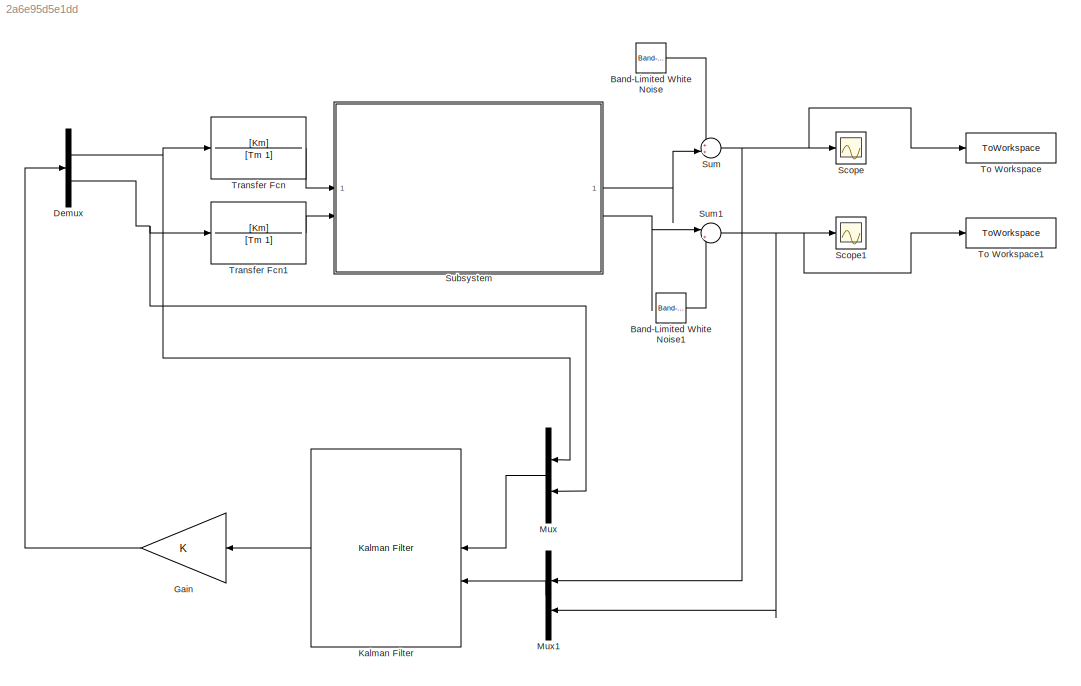
MODEL slx_2a6e95d5e1dd
KIND model
CONFIG AbsTol = auto
CONFIG EnableMultiTasking = off
CONFIG FixedStep = auto
CONFIG MaxStep = auto
CONFIG MinStep = auto
CONFIG RelTol = 1e-3
CONFIG SampleTimeConstraint = Unconstrained
CONFIG SolverName = VariableStepAuto
CONFIG StartTime = 0.0
CONFIG StopTime = 60
BLOCK [Reference] Band-Limited White Noise  REF=simulink/Sources/Band-Limited
White Noise
  SourceBlock = simulink/Sources/Band-Limited\nWhite Noise
  SourceType = Band-Limited White Noise.
BLOCK [Reference] Band-Limited White Noise1  REF=simulink/Sources/Band-Limited
White Noise
  SourceBlock = simulink/Sources/Band-Limited\nWhite Noise
  SourceType = Band-Limited White Noise.
BLOCK [Demux] Demux
  Outputs = 2
BLOCK [Gain] Gain
  Gain = K
  Multiplication = Matrix(K*u)
  NameLocation = top
BLOCK [Reference] Kalman Filter  REF=ctrlSharedLib/Kalman Filter
  LibrarySourceBlock = cstblocks/State Estimation/Kalman Filter
  NameLocation = top
  SourceBlock = ctrlSharedLib/Kalman Filter
  SourceType = ctrlKalmanFilter
BLOCK [Mux] Mux
  DisplayOption = bar
  Inputs = 2
  NameLocation = top
BLOCK [Mux] Mux1
  DisplayOption = bar
  Inputs = 2
  NameLocation = top
BLOCK [Scope] Scope
  Floating = off
  NumInputPorts = 1
  ScopeSpecificationString = Simulink.scopes.TimeScopeBlockCfg('CurrentConfiguration', extmgr.ConfigurationSet(extmgr.Configuration('Core','General UI',true),extmgr.Configuration('Core','Source UI',true),extmgr.Configuration('Sources','WiredSimulink',true),extmgr.Configuration('Visuals','Time Domain',true,'SerializedDisplays',{struct('MinYLimReal','-1.54513','MaxYLimReal','1.63214','YLabelReal','','MinYLimMag','0.00000','MaxY...<+1352ch>
BLOCK [Scope] Scope1
  Floating = off
  NumInputPorts = 1
  ScopeSpecificationString = Simulink.scopes.TimeScopeBlockCfg('CurrentConfiguration', extmgr.ConfigurationSet(extmgr.Configuration('Core','General UI',true),extmgr.Configuration('Core','Source UI',true),extmgr.Configuration('Sources','WiredSimulink',true,'DataLoggingVariableName','ScopeData1'),extmgr.Configuration('Visuals','Time Domain',true,'SerializedDisplays',{struct('MinYLimReal','-1.84721','MaxYLimReal','1.92534','YLab...<+1392ch>
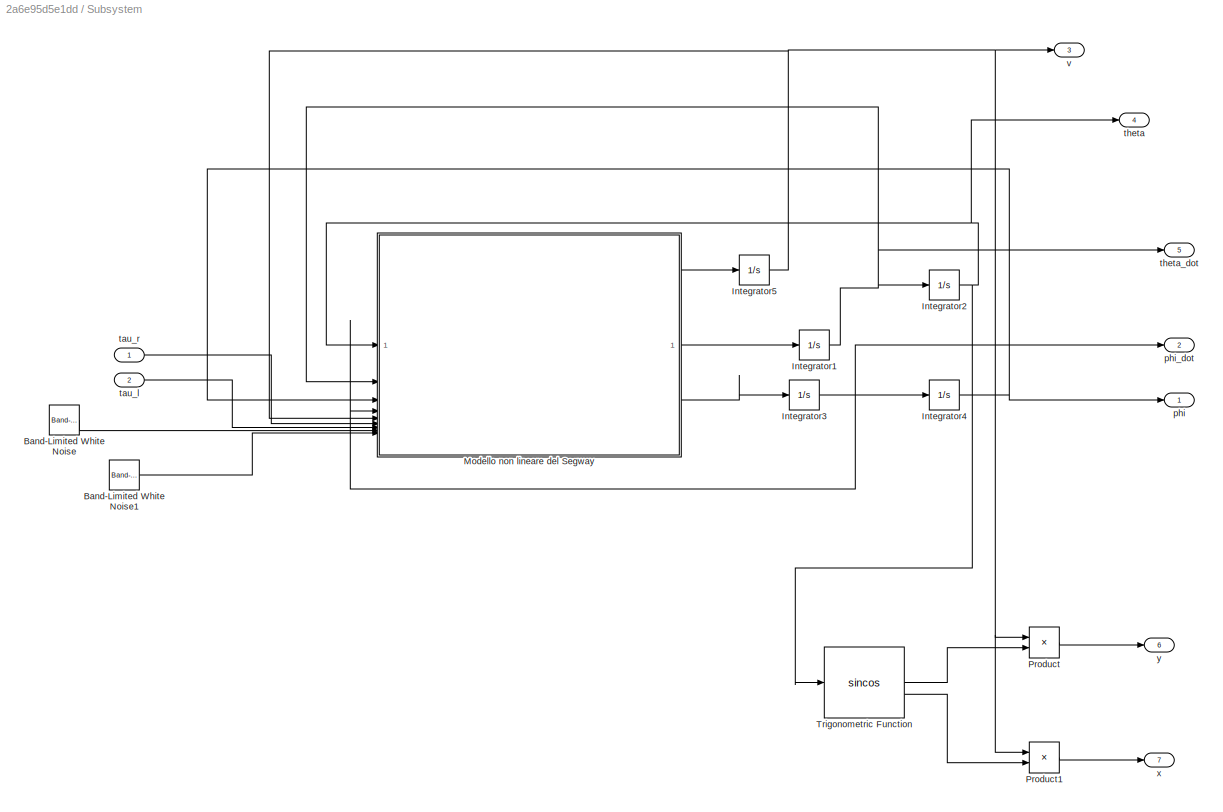
BLOCK [SubSystem] Subsystem
BLOCK [Reference] Subsystem/Band-Limited White Noise  REF=simulink/Sources/Band-Limited
White Noise
  SourceBlock = simulink/Sources/Band-Limited\nWhite Noise
  SourceType = Band-Limited White Noise.
BLOCK [Reference] Subsystem/Band-Limited White Noise1  REF=simulink/Sources/Band-Limited
White Noise
  SourceBlock = simulink/Sources/Band-Limited\nWhite Noise
  SourceType = Band-Limited White Noise.
BLOCK [Integrator] Subsystem/Integrator1
BLOCK [Integrator] Subsystem/Integrator2
BLOCK [Integrator] Subsystem/Integrator3
BLOCK [Integrator] Subsystem/Integrator4
BLOCK [Integrator] Subsystem/Integrator5
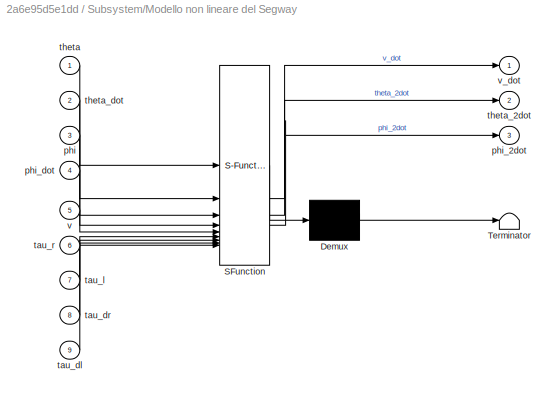
BLOCK [SubSystem] Subsystem/Modello  non lineare del Segway
  ErrorFcn = Stateflow.Translate.translate
  LibrarySourceBlock = simulink/User-Defined\nFunctions/MATLAB Function
  PermitHierarchicalResolution = ExplicitOnly
  SFBlockType = MATLAB Function
  TreatAsAtomicUnit = on
BLOCK [Demux] Subsystem/Modello  non lineare del Segway/ Demux 
  Outputs = 1
BLOCK [S-Function] Subsystem/Modello  non lineare del Segway/ SFunction 
  EnableBusSupport = on
  FunctionName = sf_sfun
  PortCounts = [9 4]
  SFcnIsStateOwnerBlock = off
  SFunctionDeploymentMode = off
  Tag = Stateflow S-Function 2
BLOCK [Terminator] Subsystem/Modello  non lineare del Segway/ Terminator 
BLOCK [Inport] Subsystem/Modello  non lineare del Segway/phi
  Port = 3
BLOCK [Outport] Subsystem/Modello  non lineare del Segway/phi_2dot
  Port = 3
BLOCK [Inport] Subsystem/Modello  non lineare del Segway/phi_dot
  Port = 4
BLOCK [Inport] Subsystem/Modello  non lineare del Segway/tau_dl
  Port = 9
BLOCK [Inport] Subsystem/Modello  non lineare del Segway/tau_dr
  Port = 8
BLOCK [Inport] Subsystem/Modello  non lineare del Segway/tau_l
  Port = 7
BLOCK [Inport] Subsystem/Modello  non lineare del Segway/tau_r
  Port = 6
BLOCK [Inport] Subsystem/Modello  non lineare del Segway/theta
BLOCK [Outport] Subsystem/Modello  non lineare del Segway/theta_2dot
  Port = 2
BLOCK [Inport] Subsystem/Modello  non lineare del Segway/theta_dot
  Port = 2
BLOCK [Inport] Subsystem/Modello  non lineare del Segway/v
  Port = 5
BLOCK [Outport] Subsystem/Modello  non lineare del Segway/v_dot
BLOCK [Product] Subsystem/Product
BLOCK [Product] Subsystem/Product1
BLOCK [Trigonometry] Subsystem/Trigonometric Function
  Operator = sincos
BLOCK [Outport] Subsystem/phi
BLOCK [Outport] Subsystem/phi_dot
  Port = 2
BLOCK [Inport] Subsystem/tau_l
  Port = 2
BLOCK [Inport] Subsystem/tau_r
BLOCK [Outport] Subsystem/theta
  Port = 4
BLOCK [Outport] Subsystem/theta_dot
  Port = 5
BLOCK [Outport] Subsystem/v
  Port = 3
BLOCK [Outport] Subsystem/x
  Port = 7
BLOCK [Outport] Subsystem/y
  Port = 6
BLOCK [Sum] Sum
  Inputs = ++|
BLOCK [Sum] Sum1
  Inputs = |++
BLOCK [ToWorkspace] To Workspace
  FixptAsFi = on
  MaxDataPoints = inf
  SampleTime = -1
  SaveFormat = Timeseries
  VariableName = phi_LQG_NL
BLOCK [ToWorkspace] To Workspace1
  FixptAsFi = on
  MaxDataPoints = inf
  SampleTime = -1
  SaveFormat = Timeseries
  VariableName = phi_dot_LQG_NL
BLOCK [TransferFcn] Transfer Fcn
  Denominator = [Tm 1]
  Numerator = [Km]
BLOCK [TransferFcn] Transfer Fcn1
  Denominator = [Tm 1]
  Numerator = [Km]
LINE Band-Limited White Noise1:1 -> Sum1:2
LINE Band-Limited White Noise:1 -> Sum:1
NET Demux:1 -> Mux:1, Transfer Fcn:1
NET Demux:2 -> Mux:2, Transfer Fcn1:1
LINE Gain:1 -> Demux:1
LINE Kalman Filter:1 -> Gain:1
LINE Mux1:1 -> Kalman Filter:2
LINE Mux:1 -> Kalman Filter:1
LINE Subsystem/Band-Limited White Noise1:1 -> Subsystem/Modello  non lineare del Segway:9
LINE Subsystem/Band-Limited White Noise:1 -> Subsystem/Modello  non lineare del Segway:8
NET Subsystem/Integrator1:1 -> Subsystem/Integrator2:1, Subsystem/Modello  non lineare del Segway:2, Subsystem/theta_dot:1
NET Subsystem/Integrator2:1 -> Subsystem/Modello  non lineare del Segway:1, Subsystem/Trigonometric Function:1, Subsystem/theta:1
NET Subsystem/Integrator3:1 -> Subsystem/Integrator4:1, Subsystem/Modello  non lineare del Segway:4, Subsystem/phi_dot:1
NET Subsystem/Integrator4:1 -> Subsystem/Modello  non lineare del Segway:3, Subsystem/phi:1
NET Subsystem/Integrator5:1 -> Subsystem/Modello  non lineare del Segway:5, Subsystem/Product1:1, Subsystem/Product:1, Subsystem/v:1
LINE Subsystem/Modello  non lineare del Segway:1 -> Subsystem/Integrator5:1
LINE Subsystem/Modello  non lineare del Segway:2 -> Subsystem/Integrator1:1
LINE Subsystem/Modello  non lineare del Segway:3 -> Subsystem/Integrator3:1
LINE Subsystem/Product1:1 -> Subsystem/x:1
LINE Subsystem/Product:1 -> Subsystem/y:1
LINE Subsystem/Trigonometric Function:1 -> Subsystem/Product:2
LINE Subsystem/Trigonometric Function:2 -> Subsystem/Product1:2
LINE Subsystem/tau_l:1 -> Subsystem/Modello  non lineare del Segway:7
LINE Subsystem/tau_r:1 -> Subsystem/Modello  non lineare del Segway:6
LINE Subsystem:1 -> Sum:2
LINE Subsystem:2 -> Sum1:1
NET Sum1:1 -> Mux1:2, Scope1:1, To Workspace1:1
NET Sum:1 -> Mux1:1, Scope:1, To Workspace:1
LINE Transfer Fcn1:1 -> Subsystem:2
LINE Transfer Fcn:1 -> Subsystem:1
note: NET lines group one-source signal fan-out (src -> all destinations, sorted); 1:1 wires keep LINE
CHART Subsystem/Modello  non lineare del Segway states=1 transitions=1
  STATE_LABEL 'eML_blk_kernel()'
  STATE_LABEL 'SCRIPT:\nfunction [v_dot, theta_2dot, phi_2dot] = SegwayDynamics(theta, theta_dot, phi, ...\n    phi_dot, v, tau_r, tau_l, tau_dr, tau_dl)\n    \n    g = 9.81;\n    m = 1.22;\n    r = 0.13;\n    a = 0.496/2;\n    L = 0.2924;\n    g = 9.81;\n    M = 54;\n\n    M_vdot = 2*(3/2*m +0.5*M);\n    M_theta2dot = 2*(3/2*m*a^2 + 1/6*M*a^2 + 1/2*M*L^2*sin(phi)^2);\n    M_phi2dot = 2*(1/2*m*r^2 + 2/3*M*L^2);\n    M_vdot_phi...<+673ch>'
CHART  states=0 transitions=0
